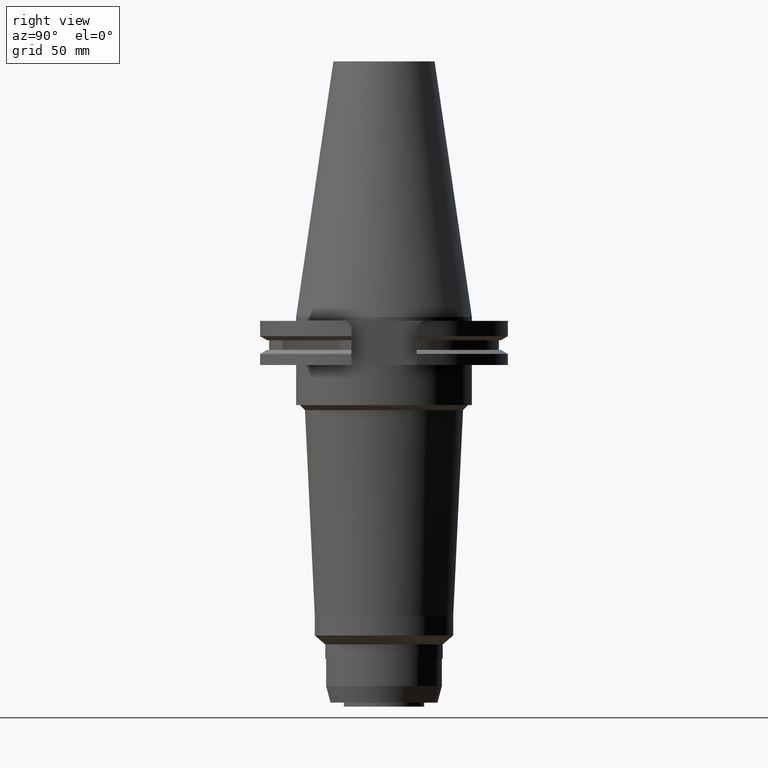
[diagram: clean part render]
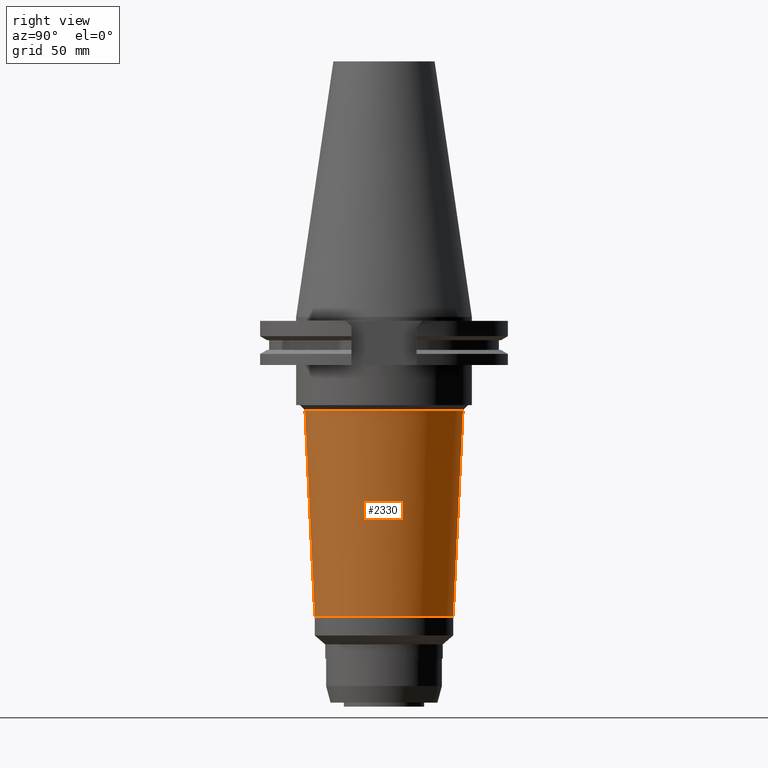
[diagram: same view with one face highlighted and labeled with its STEP entity id]
A machine part, right view. The second image highlights one B-rep face of the part: STEP entity #2330.
In plain terms, the highlighted conical surface has half-angle 2.733 deg.
Its self-contained STEP definition (entity closure, byte-faithful):
#916=DIRECTION('',(0.E0,-4.768176213158E-2,-9.988625779155E-1));
#917=VECTOR('',#916,8.189314707405E1);
#918=CARTESIAN_POINT('',(0.E0,3.140480955899E1,-3.7E1));
#919=LINE('',#918,#917);
#923=CARTESIAN_POINT('',(0.E0,0.E0,-1.188E2));
#924=DIRECTION('',(0.E0,0.E0,-1.E0));
#925=DIRECTION('',(0.E0,1.E0,0.E0));
#926=AXIS2_PLACEMENT_3D('',#923,#924,#925);
#931=CARTESIAN_POINT('',(0.E0,0.E0,-3.7E1));
#932=DIRECTION('',(0.E0,0.E0,1.E0));
#933=DIRECTION('',(0.E0,-1.E0,0.E0));
#934=AXIS2_PLACEMENT_3D('',#931,#932,#933);
#939=DIRECTION('',(0.E0,4.768176213158E-2,-9.988625779155E-1));
#940=VECTOR('',#939,8.189314707405E1);
#941=CARTESIAN_POINT('',(0.E0,-3.140480955899E1,-3.7E1));
#942=LINE('',#941,#940);
#1490=CARTESIAN_POINT('',(0.E0,2.75E1,-1.188E2));
#1491=VERTEX_POINT('',#1490);
#1492=CARTESIAN_POINT('',(0.E0,-2.75E1,-1.188E2));
#1493=VERTEX_POINT('',#1492);
#1494=CARTESIAN_POINT('',(0.E0,3.140480955899E1,-3.7E1));
#1495=VERTEX_POINT('',#1494);
#1496=CARTESIAN_POINT('',(0.E0,-3.140480955899E1,-3.7E1));
#1497=VERTEX_POINT('',#1496);
#2316=CARTESIAN_POINT('',(0.E0,0.E0,-7.79E1));
#2317=DIRECTION('',(0.E0,0.E0,1.E0));
#2318=DIRECTION('',(0.E0,1.E0,0.E0));
#2319=AXIS2_PLACEMENT_3D('',#2316,#2317,#2318);
#2320=CONICAL_SURFACE('',#2319,2.945240477950E1,2.733E0);
#2322=ORIENTED_EDGE('',*,*,#2321,.T.);
#2324=ORIENTED_EDGE('',*,*,#2323,.T.);
#2326=ORIENTED_EDGE('',*,*,#2325,.F.);
#2327=ORIENTED_EDGE('',*,*,#2309,.T.);
#2328=EDGE_LOOP('',(#2322,#2324,#2326,#2327));
#2329=FACE_OUTER_BOUND('',#2328,.F.);
#927=CIRCLE('',#926,2.75E1);
#935=CIRCLE('',#934,3.140480955900E1);
#2309=EDGE_CURVE('',#1497,#1495,#935,.T.);
#2321=EDGE_CURVE('',#1495,#1491,#919,.T.);
#2323=EDGE_CURVE('',#1491,#1493,#927,.T.);
#2325=EDGE_CURVE('',#1497,#1493,#942,.T.);
#2330=ADVANCED_FACE('',(#2329),#2320,.T.);